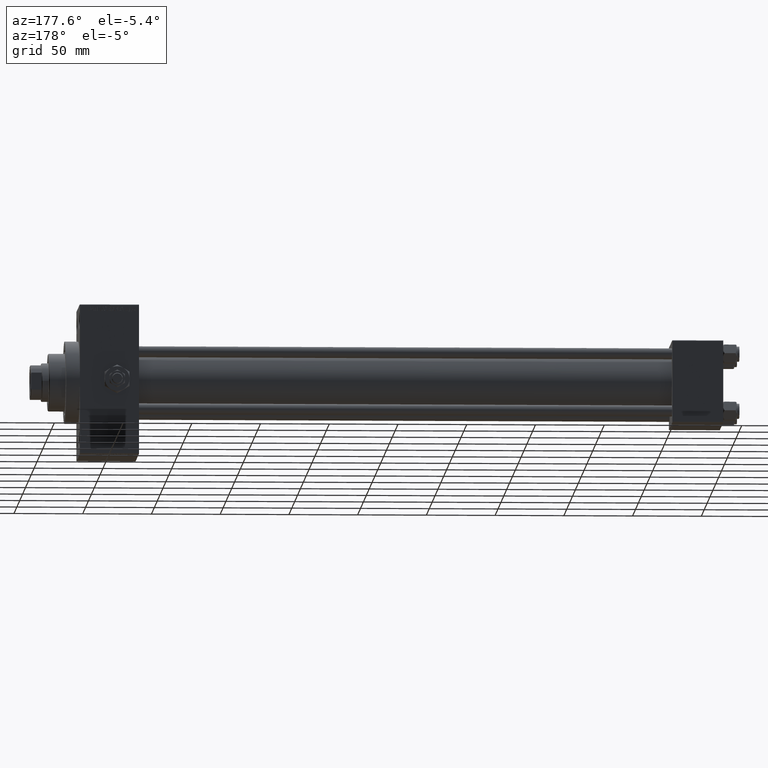
[diagram: clean part render]
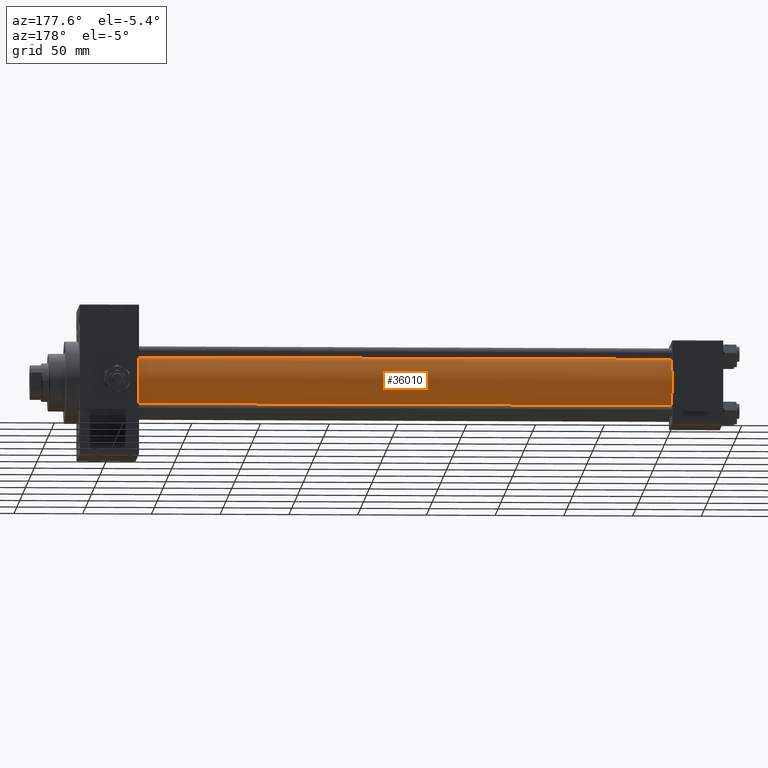
[diagram: same view with one face highlighted and labeled with its STEP entity id]
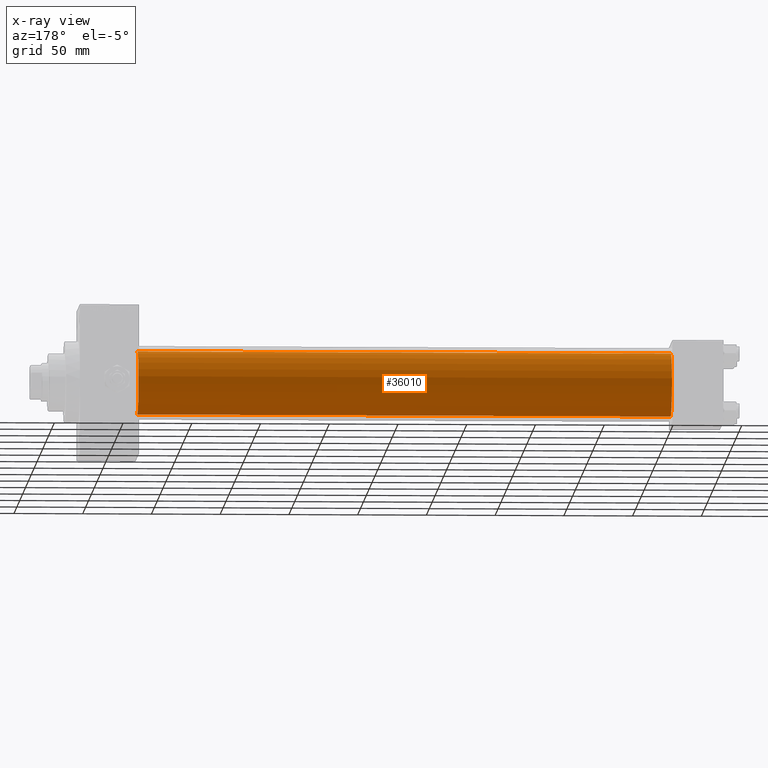
[diagram: x-ray of the same camera — body ghosted, the highlighted face saturated]
A machine part, auxiliary view. The second image highlights one B-rep face of the part: STEP entity #36010.
The next image is the same camera in x-ray: the body ghosted, the highlighted face saturated — about 0% of this face is hidden behind the body in this view.
In plain terms, the highlighted cylindrical surface (edge-blend (fillet) strip) has radius 23 mm, axis along (-1, -0, -0).
Its self-contained STEP definition (entity closure, byte-faithful):
#1539 = VERTEX_POINT ( 'NONE', #39953 ) ;
#3355 = CIRCLE ( 'NONE', #10508, 23.00000000000000000 ) ;
#3595 = DIRECTION ( 'NONE',  ( 1.000000000000000000, 0.000000000000000000, 0.000000000000000000 ) ) ;
#4047 = DIRECTION ( 'NONE',  ( -1.000000000000000000, -0.000000000000000000, -0.000000000000000000 ) ) ;
#4352 = CIRCLE ( 'NONE', #7512, 23.00000000000000000 ) ;
#5897 = CARTESIAN_POINT ( 'NONE',  ( 425.0000000000000000, 2.146024240737012665E-16, -23.00000000000000000 ) ) ;
#7512 = AXIS2_PLACEMENT_3D ( 'NONE', #19875, #45652, #8228 ) ;
#7752 = EDGE_CURVE ( 'NONE', #1539, #48483, #23634, .T. ) ;
#8228 = DIRECTION ( 'NONE',  ( 0.000000000000000000, 0.000000000000000000, 1.000000000000000000 ) ) ;
#9354 = CARTESIAN_POINT ( 'NONE',  ( 425.0000000000000000, -2.602085213965210642E-15, 0.000000000000000000 ) ) ;
#9964 = LINE ( 'NONE', #16417, #30172 ) ;
#10508 = AXIS2_PLACEMENT_3D ( 'NONE', #41253, #3595, #15714 ) ;
#14958 = DIRECTION ( 'NONE',  ( 0.000000000000000000, 0.000000000000000000, 1.000000000000000000 ) ) ;
#15102 = ORIENTED_EDGE ( 'NONE', *, *, #37616, .F. ) ;
#15714 = DIRECTION ( 'NONE',  ( 0.000000000000000000, 0.000000000000000000, -1.000000000000000000 ) ) ;
#16417 = CARTESIAN_POINT ( 'NONE',  ( 425.0000000000000000, 2.146024240737012665E-16, -23.00000000000000000 ) ) ;
#17641 = EDGE_CURVE ( 'NONE', #17755, #48483, #4352, .T. ) ;
#17755 = VERTEX_POINT ( 'NONE', #39208 ) ;
#19875 = CARTESIAN_POINT ( 'NONE',  ( 36.99999999999997868, -2.602085213965210642E-15, 0.000000000000000000 ) ) ;
#20050 = EDGE_LOOP ( 'NONE', ( #15102, #33669, #21146, #43169 ) ) ;
#20631 = DIRECTION ( 'NONE',  ( -1.000000000000000000, -0.000000000000000000, -0.000000000000000000 ) ) ;
#21146 = ORIENTED_EDGE ( 'NONE', *, *, #17641, .T. ) ;
#23634 = LINE ( 'NONE', #31060, #34342 ) ;
#30172 = VECTOR ( 'NONE', #20631, 1000.000000000000000 ) ;
#31060 = CARTESIAN_POINT ( 'NONE',  ( 425.0000000000000000, -2.602085213965210642E-15, 23.00000000000000000 ) ) ;
#33669 = ORIENTED_EDGE ( 'NONE', *, *, #34593, .T. ) ;
#34342 = VECTOR ( 'NONE', #38739, 1000.000000000000000 ) ;
#34593 = EDGE_CURVE ( 'NONE', #45378, #17755, #9964, .T. ) ;
#35642 = FACE_OUTER_BOUND ( 'NONE', #20050, .T. ) ;
#36010 = ADVANCED_FACE ( 'NONE', ( #35642 ), #39359, .T. ) ;
#37179 = CARTESIAN_POINT ( 'NONE',  ( 36.99999999999997868, -2.602085213965210642E-15, 23.00000000000000000 ) ) ;
#37616 = EDGE_CURVE ( 'NONE', #45378, #1539, #3355, .T. ) ;
#38739 = DIRECTION ( 'NONE',  ( -1.000000000000000000, -0.000000000000000000, -0.000000000000000000 ) ) ;
#39208 = CARTESIAN_POINT ( 'NONE',  ( 36.99999999999997868, 2.146024240737012665E-16, -23.00000000000000000 ) ) ;
#39359 = CYLINDRICAL_SURFACE ( 'NONE', #40499, 23.00000000000000000 ) ;
#39953 = CARTESIAN_POINT ( 'NONE',  ( 425.0000000000000000, -2.602085213965210642E-15, 23.00000000000000000 ) ) ;
#40499 = AXIS2_PLACEMENT_3D ( 'NONE', #9354, #4047, #14958 ) ;
#41253 = CARTESIAN_POINT ( 'NONE',  ( 425.0000000000000000, -2.602085213965210642E-15, 0.000000000000000000 ) ) ;
#43169 = ORIENTED_EDGE ( 'NONE', *, *, #7752, .F. ) ;
#45378 = VERTEX_POINT ( 'NONE', #5897 ) ;
#45652 = DIRECTION ( 'NONE',  ( 1.000000000000000000, -0.000000000000000000, 0.000000000000000000 ) ) ;
#48483 = VERTEX_POINT ( 'NONE', #37179 ) ;